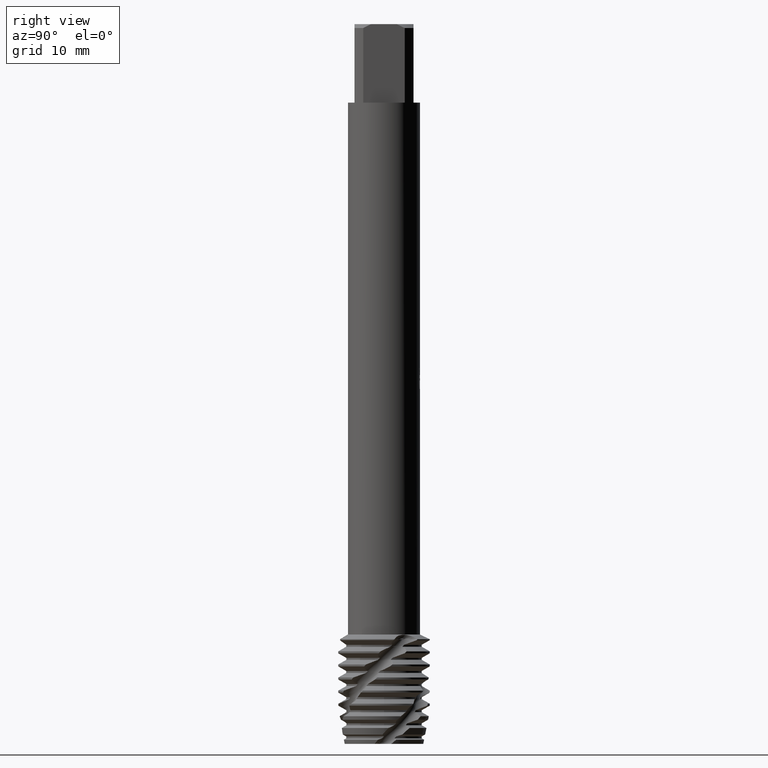
[diagram: clean part render]
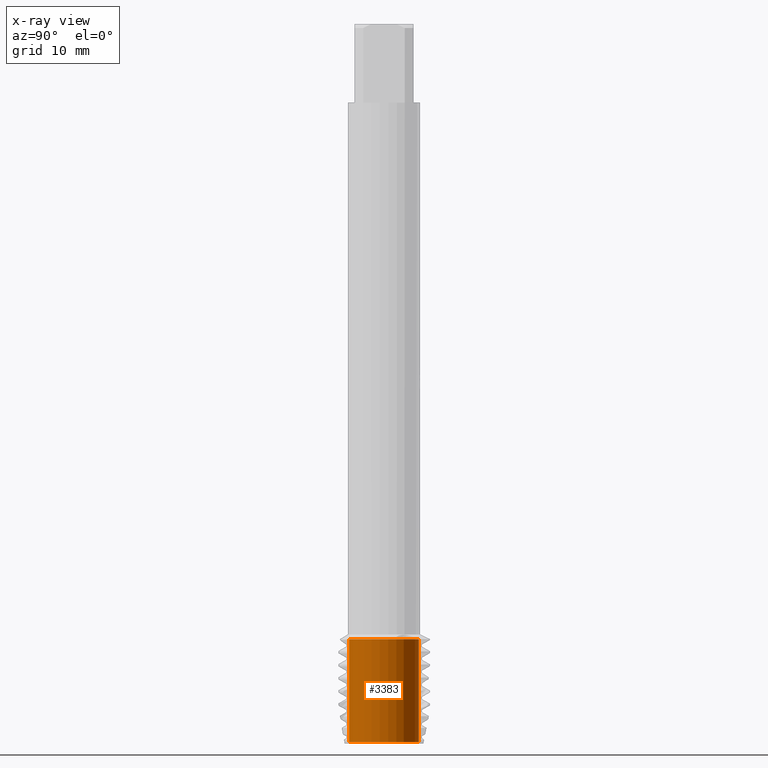
[diagram: x-ray — body ghosted, one internal face saturated and labeled with its STEP entity id]
A machine part, right view, then the same camera in x-ray: the body is ghosted and one INTERNAL B-rep face — a face not visible from any outside direction — is saturated and labeled: STEP entity #3383.
In plain terms, the highlighted cylindrical surface (edge-blend (fillet) strip) has radius 5.3257 mm, axis along (-0, -0, 1).
Its self-contained STEP definition (entity closure, byte-faithful):
#1195=VERTEX_POINT('',#3502);
#1681=VERTEX_POINT('',#4037);
#2247=EDGE_CURVE('',#3327,#3455,#4657,.T.);
#2413=EDGE_CURVE('',#1195,#1681,#4838,.T.);
#2971=EDGE_CURVE('',#1681,#3327,#5450,.T.);
#3069=EDGE_CURVE('',#1195,#3455,#5556,.T.);
#3327=VERTEX_POINT('',#5832);
#3383=ADVANCED_FACE('',(#5890),#5891,.T.);
#3455=VERTEX_POINT('',#5966);
#3502=CARTESIAN_POINT('',(0.0,5.32572142,-94.0));
#4037=CARTESIAN_POINT('',(0.0,5.32572142,-109.699791834295));
#4657=LINE('',#8977,#8978);
#4838=LINE('',#9415,#9416);
#5450=CIRCLE('',#11560,5.32572142);
#5556=CIRCLE('',#11755,5.32572142);
#5832=CARTESIAN_POINT('',(6.52191228961993E-016,-5.32572142,-109.699791834295));
#5890=FACE_OUTER_BOUND('',#13034,.T.);
#5891=CYLINDRICAL_SURFACE('',#13035,5.32572142);
#5966=CARTESIAN_POINT('',(6.52191228961993E-016,-5.32572142,-94.0));
#8977=CARTESIAN_POINT('',(6.52191228961993E-016,-5.32572142,-101.849895917147));
#8978=VECTOR('',#14547,1.0);
#9415=CARTESIAN_POINT('',(-6.52191228961993E-016,5.32572142,-101.849895917147));
#9416=VECTOR('',#14740,1.0);
#11560=AXIS2_PLACEMENT_3D('',#15503,#15504,#15505);
#11755=AXIS2_PLACEMENT_3D('',#15602,#15603,#15604);
#13034=EDGE_LOOP('',(#15937,#15938,#15939,#15940));
#13035=AXIS2_PLACEMENT_3D('',#15941,#15942,#15943);
#14547=DIRECTION('',(-0.0,-0.0,1.0));
#14740=DIRECTION('',(0.0,0.0,-1.0));
#15503=CARTESIAN_POINT('',(0.0,0.0,-109.699791834295));
#15504=DIRECTION('',(0.0,0.0,-1.0));
#15505=DIRECTION('',(0.0,1.0,0.0));
#15602=CARTESIAN_POINT('',(0.0,0.0,-94.0));
#15603=DIRECTION('',(0.0,0.0,-1.0));
#15604=DIRECTION('',(0.0,1.0,0.0));
#15937=ORIENTED_EDGE('',*,*,#2413,.F.);
#15938=ORIENTED_EDGE('',*,*,#3069,.T.);
#15939=ORIENTED_EDGE('',*,*,#2247,.F.);
#15940=ORIENTED_EDGE('',*,*,#2971,.F.);
#15941=CARTESIAN_POINT('',(0.0,0.0,-101.849895917147));
#15942=DIRECTION('',(-0.0,-0.0,1.0));
#15943=DIRECTION('',(0.0,1.0,0.0));